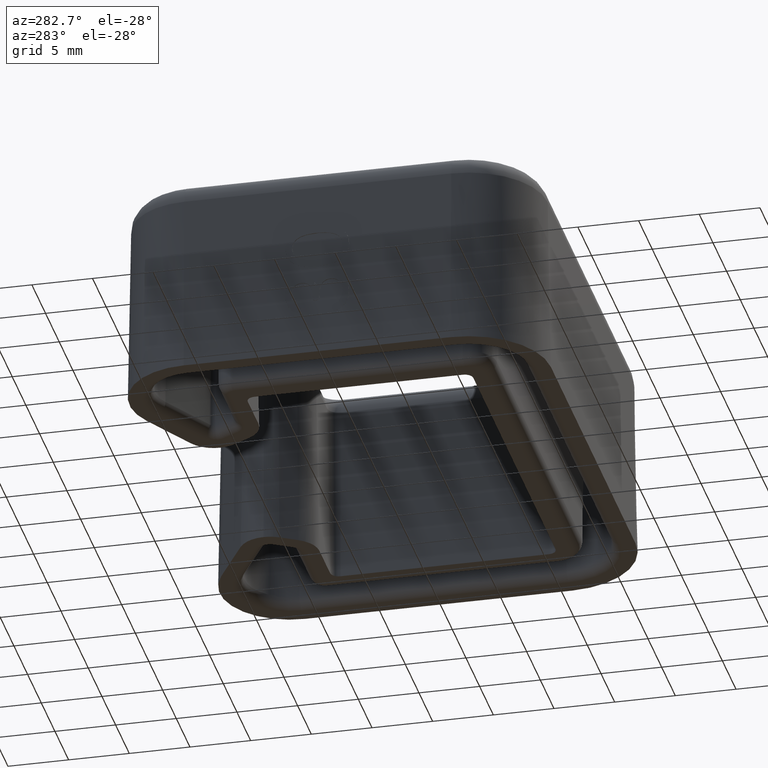
[diagram: clean part render]
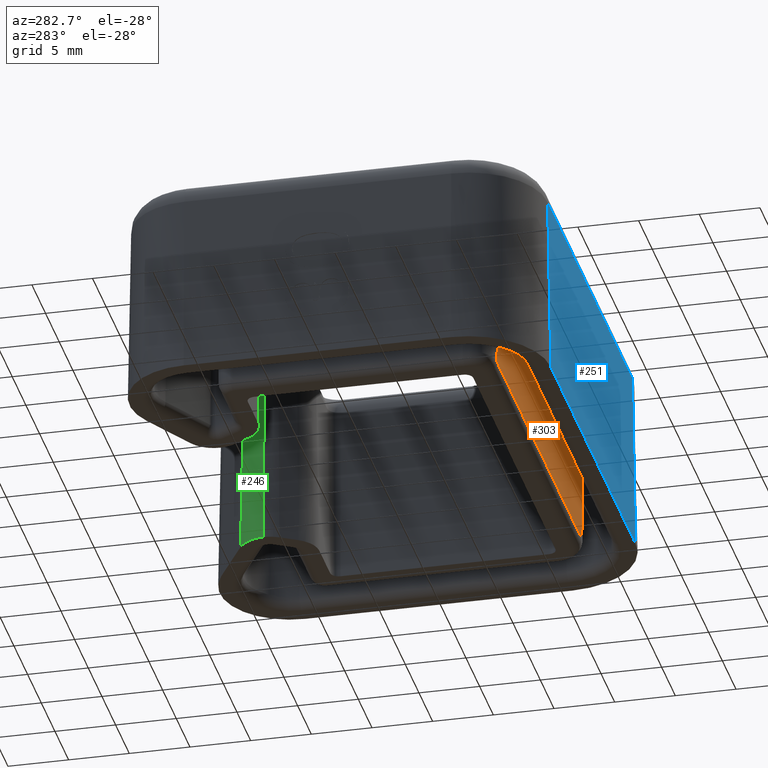
[diagram: same view with three faces highlighted in distinct colors, each labeled with its STEP entity id]
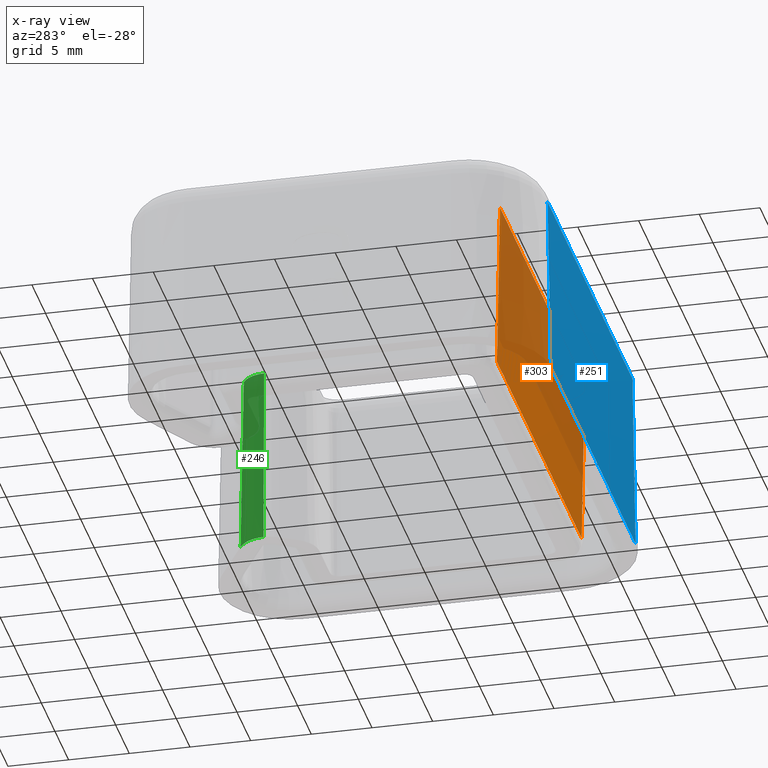
[diagram: x-ray of the same camera — body ghosted, the three highlighted faces saturated]
A machine part, auxiliary view with three faces highlighted in distinct colors.
The next image is the same camera in x-ray (body ghosted, the three faces saturated) — at least one of them is partly hidden behind the body in this view.
Their STEP definitions:

[orange] entity #303 — the highlighted planar face has unit normal (0, -0.9998, -0.0175).
#303=ADVANCED_FACE('',(#652),#653,.T.);
#652=FACE_OUTER_BOUND('',#1065,.T.);
#653=PLANE('',#1066);
#1065=EDGE_LOOP('',(#2558,#2559,#2560,#2561));
#1066=AXIS2_PLACEMENT_3D('',#2562,#2563,#2564);
#2558=ORIENTED_EDGE('',*,*,#3184,.F.);
#2559=ORIENTED_EDGE('',*,*,#3185,.T.);
#2560=ORIENTED_EDGE('',*,*,#3180,.T.);
#2561=ORIENTED_EDGE('',*,*,#3186,.T.);
#2562=CARTESIAN_POINT('',(15.4999999999982,1.95000000001291,15.0));
#2563=DIRECTION('',(8.32540449210762E-13,-0.999847695156391,-0.0174524064372835));
#2564=DIRECTION('',(0.0,0.0174524064372835,-0.999847695156391));
#3180=EDGE_CURVE('',#3870,#3871,#3872,.T.);
#3184=EDGE_CURVE('',#3878,#3879,#3880,.T.);
#3185=EDGE_CURVE('',#3878,#3870,#3881,.F.);
#3186=EDGE_CURVE('',#3871,#3879,#3882,.F.);
#3870=VERTEX_POINT('',#5578);
#3871=VERTEX_POINT('',#5579);
#3872=LINE('',#5580,#5581);
#3878=VERTEX_POINT('',#5588);
#3879=VERTEX_POINT('',#5589);
#3880=LINE('',#5590,#5591);
#3881=LINE('',#5592,#5593);
#3882=LINE('',#5594,#5595);
#5578=CARTESIAN_POINT('',(15.499999999998,2.19467554189542,0.98254759356272));
#5579=CARTESIAN_POINT('',(15.4999999999982,1.95000000001286,15.0));
#5580=CARTESIAN_POINT('',(15.4999999999982,1.95000000001286,15.0));
#5581=VECTOR('',#6248,1000.0);
#5588=CARTESIAN_POINT('',(-15.5000000000013,2.19467554186967,0.982547593562718));
#5589=CARTESIAN_POINT('',(-15.500000000001,1.9499999999871,15.0));
#5590=CARTESIAN_POINT('',(-15.500000000001,1.9499999999871,15.0));
#5591=VECTOR('',#6256,1000.0);
#5592=CARTESIAN_POINT('',(15.499999999998,2.19467554189548,0.982547593562716));
#5593=VECTOR('',#6257,1000.0);
#5594=CARTESIAN_POINT('',(15.4999999999982,1.95000000001291,15.0));
#5595=VECTOR('',#6258,1000.0);
#6248=DIRECTION('',(1.45083024205269E-14,-0.0174524064372835,0.999847695156391));
#6256=DIRECTION('',(1.45320475963413E-14,-0.0174524064372835,0.999847695156391));
#6257=DIRECTION('',(-1.0,-8.32667268468864E-13,0.0));
#6258=DIRECTION('',(1.0,8.32667268468864E-13,0.0));

[blue] entity #251 — the highlighted planar face has unit normal (-0, 0.9998, -0.0175).
#251=ADVANCED_FACE('',(#548),#549,.F.);
#548=FACE_OUTER_BOUND('',#961,.T.);
#549=PLANE('',#962);
#961=EDGE_LOOP('',(#2194,#2195,#2196,#2197));
#962=AXIS2_PLACEMENT_3D('',#2198,#2199,#2200);
#2194=ORIENTED_EDGE('',*,*,#3111,.T.);
#2195=ORIENTED_EDGE('',*,*,#3112,.T.);
#2196=ORIENTED_EDGE('',*,*,#3113,.F.);
#2197=ORIENTED_EDGE('',*,*,#3054,.T.);
#2198=CARTESIAN_POINT('',(15.0500000000015,-1.94999999998747,17.0));
#2199=DIRECTION('',(-8.32092846818713E-13,0.999847695156391,-0.0174524064372836));
#2200=DIRECTION('',(0.0,0.0174524064372835,0.999847695156391));
#3054=EDGE_CURVE('',#3682,#3680,#3683,.F.);
#3111=EDGE_CURVE('',#3680,#3780,#3782,.T.);
#3112=EDGE_CURVE('',#3780,#3783,#3784,.F.);
#3113=EDGE_CURVE('',#3682,#3783,#3785,.T.);
#3680=VERTEX_POINT('',#5328);
#3682=VERTEX_POINT('',#5330);
#3683=LINE('',#5331,#5332);
#3780=VERTEX_POINT('',#5462);
#3782=LINE('',#5464,#5465);
#3783=VERTEX_POINT('',#5466);
#3784=LINE('',#5467,#5468);
#3785=LINE('',#5469,#5470);
#5328=CARTESIAN_POINT('',(15.5000000000037,-2.2467361037668,0.0));
#5330=CARTESIAN_POINT('',(-15.4999999999985,-2.24673610379632,0.0));
#5331=CARTESIAN_POINT('',(15.0500000000018,-2.24673610376717,0.0));
#5332=VECTOR('',#5990,1000.0);
#5462=CARTESIAN_POINT('',(15.5000000000035,-1.9843008640685,15.0349048128745));
#5464=CARTESIAN_POINT('',(15.5000000000035,-1.94999999998709,17.0));
#5465=VECTOR('',#6093,1000.0);
#5466=CARTESIAN_POINT('',(-15.4999999999986,-1.98430086409802,15.0349048128745));
#5467=CARTESIAN_POINT('',(-15.4999999999986,-1.9843008640943,15.0349048128745));
#5468=VECTOR('',#6094,1000.0);
#5469=CARTESIAN_POINT('',(-15.4999999999987,-1.95000000001662,17.0));
#5470=VECTOR('',#6095,1000.0);
#5990=DIRECTION('',(-1.0,-8.32219597894418E-13,0.0));
#6093=DIRECTION('',(-1.45242346675261E-14,0.0174524064372835,0.999847695156391));
#6094=DIRECTION('',(1.0,8.32219597894418E-13,0.0));
#6095=DIRECTION('',(-1.45273537825121E-14,0.0174524064372835,0.999847695156391));

[green] entity #246 — the highlighted conical surface has half-angle 1 deg.
#246=ADVANCED_FACE('',(#538),#539,.T.);
#538=FACE_OUTER_BOUND('',#951,.T.);
#539=CONICAL_SURFACE('',#952,2.19999999999997,0.0174532925199416);
#951=EDGE_LOOP('',(#2159,#2160,#2161,#2162));
#952=AXIS2_PLACEMENT_3D('',#2163,#2164,#2165);
#2159=ORIENTED_EDGE('',*,*,#3007,.T.);
#2160=ORIENTED_EDGE('',*,*,#3002,.T.);
#2161=ORIENTED_EDGE('',*,*,#3103,.F.);
#2162=ORIENTED_EDGE('',*,*,#3049,.T.);
#2163=CARTESIAN_POINT('',(10.341506350932,26.697168783658,17.0));
#2164=DIRECTION('',(-0.0,-0.0,-1.0));
#2165=DIRECTION('',(-1.0,0.0,0.0));
#3002=EDGE_CURVE('',#3580,#3584,#3586,.T.);
#3007=EDGE_CURVE('',#3594,#3580,#3595,.T.);
#3049=EDGE_CURVE('',#3672,#3594,#3673,.F.);
#3103=EDGE_CURVE('',#3672,#3584,#3770,.T.);
#3580=VERTEX_POINT('',#5206);
#3584=VERTEX_POINT('',#5210);
#3586=CIRCLE('',#5212,2.23430086408137);
#3594=VERTEX_POINT('',#5222);
#3595=LINE('',#5223,#5224);
#3672=VERTEX_POINT('',#5318);
#3673=CIRCLE('',#5319,2.49673610377967);
#3770=LINE('',#5446,#5447);
#5206=CARTESIAN_POINT('',(8.10720548685065,26.697168783658,15.0349048128745));
#5210=CARTESIAN_POINT('',(9.22435591888889,28.6321300916486,15.0349048128745));
#5212=AXIS2_PLACEMENT_3D('',#5878,#5879,#5880);
#5222=CARTESIAN_POINT('',(7.84477024715235,26.697168783658,7.105427357601E-15));
#5223=CARTESIAN_POINT('',(8.14150635093204,26.697168783658,17.0));
#5224=VECTOR('',#5889,1.0);
#5318=CARTESIAN_POINT('',(9.09313829903945,28.8594056760755,0.0));
#5319=AXIS2_PLACEMENT_3D('',#5979,#5980,#5981);
#5446=CARTESIAN_POINT('',(9.24150635092963,28.6024246719824,17.0));
#5447=VECTOR('',#6081,1000.0);
#5878=CARTESIAN_POINT('',(10.341506350932,26.697168783658,15.0349048128745));
#5879=DIRECTION('',(0.0,0.0,-1.0));
#5880=DIRECTION('',(-1.0,0.0,0.0));
#5889=DIRECTION('',(0.0174524064372818,-0.0,0.999847695156391));
#5979=CARTESIAN_POINT('',(10.341506350932,26.697168783658,6.93889390390723E-15));
#5980=DIRECTION('',(0.0,0.0,-1.0));
#5981=DIRECTION('',(-1.0,0.0,0.0));
#6081=DIRECTION('',(0.00872620321866073,-0.0151142273318477,0.999847695156391));